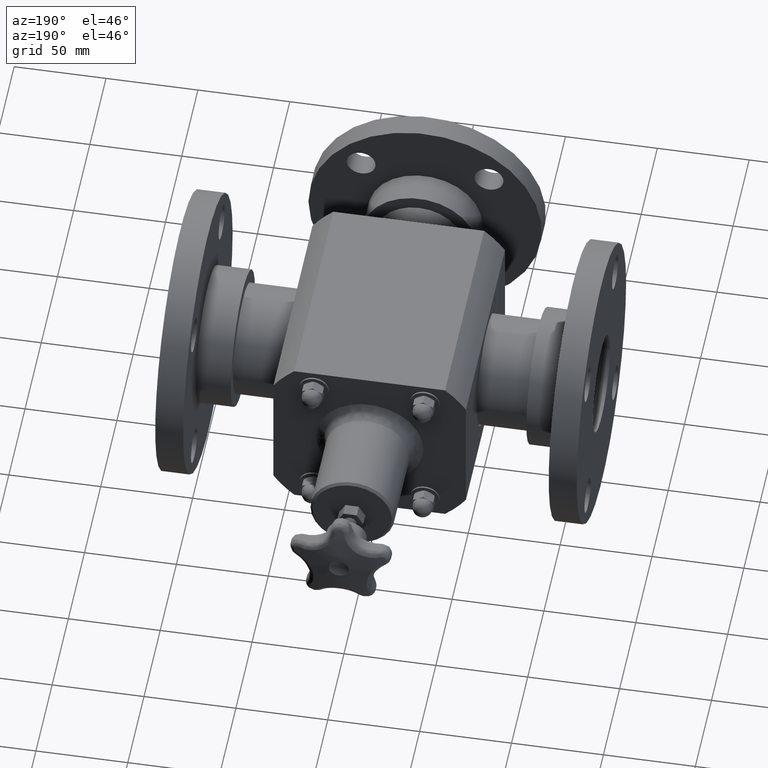
[diagram: clean part render]
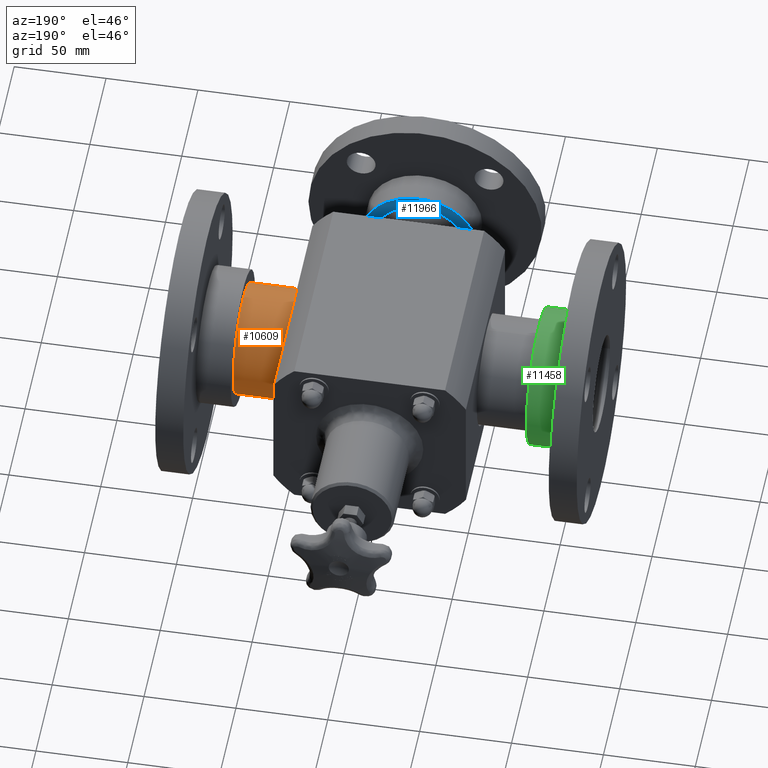
[diagram: same view with three faces highlighted in distinct colors, each labeled with its STEP entity id]
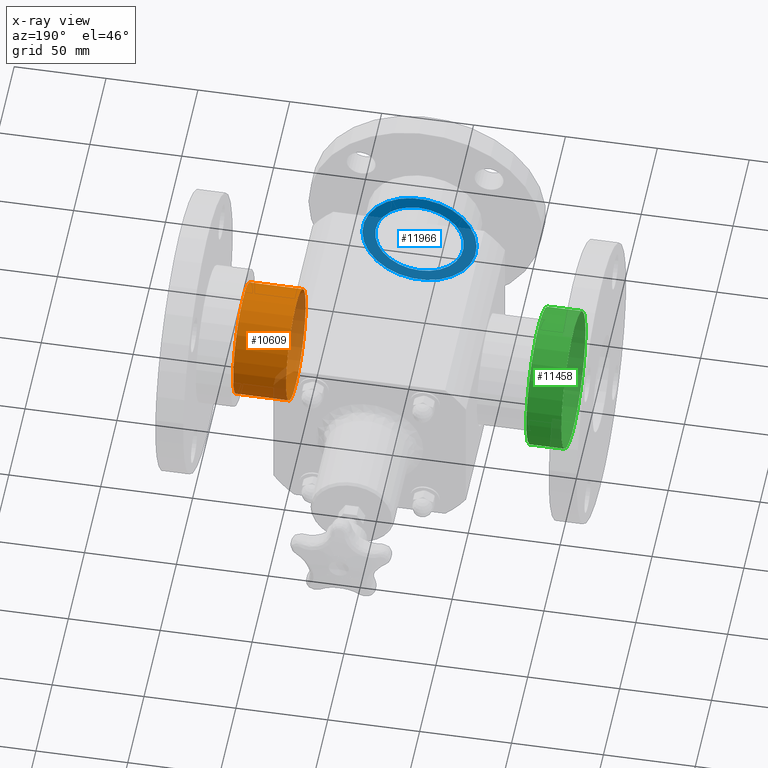
[diagram: x-ray of the same camera — body ghosted, the three highlighted faces saturated]
A machine part, auxiliary view with three faces highlighted in distinct colors.
The next image is the same camera in x-ray (body ghosted, the three faces saturated) — at least one of them is partly hidden behind the body in this view.
Their STEP definitions:

[orange] entity #10609 — the highlighted cylindrical surface (bore or boss wall) has radius 30.1625 mm, axis along (-1, -0, -0).
#10582=CARTESIAN_POINT('',(2.774999999999997,2.198000000000001,-7.544892E-017));
#10583=DIRECTION('',(-1.0,-8.326673E-016,-3.457792E-017));
#10584=DIRECTION('',(0.0,0.0,1.0));
#10585=AXIS2_PLACEMENT_3D('',#10582,#10583,#10584);
#10586=CYLINDRICAL_SURFACE('',#10585,1.187500000000000);
#10587=CARTESIAN_POINT('',(3.164999999999995,2.198000000000073,-1.187500000000000));
#10588=VERTEX_POINT('',#10587);
#10589=CARTESIAN_POINT('',(3.164999999999995,2.198000000000001,-6.196353E-017));
#10590=DIRECTION('',(1.0,0.0,0.0));
#10591=DIRECTION('',(0.0,0.0,1.0));
#10592=AXIS2_PLACEMENT_3D('',#10589,#10590,#10591);
#10593=CIRCLE('',#10592,1.187500000000000);
#10594=EDGE_CURVE('',#10588,#10588,#10593,.T.);
#10595=ORIENTED_EDGE('',*,*,#10594,.F.);
#10596=EDGE_LOOP('',(#10595));
#10597=FACE_OUTER_BOUND('',#10596,.T.);
#10598=CARTESIAN_POINT('',(2.030563773818456,2.198000000000072,-1.187500000000000));
#10599=VERTEX_POINT('',#10598);
#10600=CARTESIAN_POINT('',(2.030563773818456,2.198000000000000,-1.011900E-016));
#10601=DIRECTION('',(-1.0,0.0,0.0));
#10602=DIRECTION('',(0.0,0.0,1.0));
#10603=AXIS2_PLACEMENT_3D('',#10600,#10601,#10602);
#10604=CIRCLE('',#10603,1.187500000000000);
#10605=EDGE_CURVE('',#10599,#10599,#10604,.T.);
#10606=ORIENTED_EDGE('',*,*,#10605,.F.);
#10607=EDGE_LOOP('',(#10606));
#10608=FACE_BOUND('',#10607,.T.);
#10609=ADVANCED_FACE('',(#10597,#10608),#10586,.T.);

[blue] entity #11966 — the highlighted planar face has unit normal (0, 1, 0).
#10519=CARTESIAN_POINT('',(-6.045587E-014,-1.307000000000000,0.949999999999998));
#10520=VERTEX_POINT('',#10519);
#10521=CARTESIAN_POINT('',(-2.854140E-015,-1.307000000000000,-2.175416E-015));
#10522=DIRECTION('',(0.0,-1.0,0.0));
#10523=DIRECTION('',(0.0,0.0,-1.0));
#10524=AXIS2_PLACEMENT_3D('',#10521,#10522,#10523);
#10525=CIRCLE('',#10524,0.950000000000000);
#10526=EDGE_CURVE('',#10520,#10520,#10525,.T.);
#11940=CARTESIAN_POINT('',(1.224999999999997,-1.307000000000000,-1.224601E-015));
#11941=VERTEX_POINT('',#11940);
#11942=CARTESIAN_POINT('',(-3.678345E-015,-1.307000000000001,-2.275148E-015));
#11943=DIRECTION('',(0.0,1.0,0.0));
#11944=DIRECTION('',(1.0,0.0,0.0));
#11945=AXIS2_PLACEMENT_3D('',#11942,#11943,#11944);
#11946=CIRCLE('',#11945,1.225000000000000);
#11947=EDGE_CURVE('',#11941,#11941,#11946,.T.);
#11955=CARTESIAN_POINT('',(1.077499999999997,-1.307000000000000,-1.351096E-015));
#11956=DIRECTION('',(0.0,1.0,0.0));
#11957=DIRECTION('',(0.0,0.0,-1.0));
#11958=AXIS2_PLACEMENT_3D('',#11955,#11956,#11957);
#11959=PLANE('',#11958);
#11960=ORIENTED_EDGE('',*,*,#11947,.T.);
#11961=EDGE_LOOP('',(#11960));
#11962=FACE_OUTER_BOUND('',#11961,.T.);
#11963=ORIENTED_EDGE('',*,*,#10526,.T.);
#11964=EDGE_LOOP('',(#11963));
#11965=FACE_BOUND('',#11964,.T.);
#11966=ADVANCED_FACE('',(#11962,#11965),#11959,.T.);

[green] entity #11458 — the highlighted cylindrical surface (bore or boss wall) has radius 37.211 mm, axis along (1, 0, -0).
#11427=CARTESIAN_POINT('',(-3.915000000000004,0.732999999999998,-7.110834E-016));
#11428=VERTEX_POINT('',#11427);
#11429=CARTESIAN_POINT('',(-3.915000000000004,2.197999999999998,-1.429537E-015));
#11430=DIRECTION('',(1.0,0.0,0.0));
#11431=DIRECTION('',(0.0,-1.0,0.0));
#11432=AXIS2_PLACEMENT_3D('',#11429,#11430,#11431);
#11433=CIRCLE('',#11432,1.465000000000000);
#11434=EDGE_CURVE('',#11428,#11428,#11433,.T.);
#11439=CARTESIAN_POINT('',(-3.540000000000004,2.197999999999998,-1.499894E-015));
#11440=DIRECTION('',(1.0,5.551115E-017,-1.876194E-016));
#11441=DIRECTION('',(0.0,-1.0,0.0));
#11442=AXIS2_PLACEMENT_3D('',#11439,#11440,#11441);
#11443=CYLINDRICAL_SURFACE('',#11442,1.465000000000000);
#11444=CARTESIAN_POINT('',(-3.165000000000004,0.732999999999998,-8.517980E-016));
#11445=VERTEX_POINT('',#11444);
#11446=CARTESIAN_POINT('',(-3.165000000000004,2.197999999999998,-1.570252E-015));
#11447=DIRECTION('',(1.0,0.0,0.0));
#11448=DIRECTION('',(0.0,-1.0,0.0));
#11449=AXIS2_PLACEMENT_3D('',#11446,#11447,#11448);
#11450=CIRCLE('',#11449,1.465000000000000);
#11451=EDGE_CURVE('',#11445,#11445,#11450,.T.);
#11452=ORIENTED_EDGE('',*,*,#11451,.F.);
#11453=EDGE_LOOP('',(#11452));
#11454=FACE_OUTER_BOUND('',#11453,.T.);
#11455=ORIENTED_EDGE('',*,*,#11434,.T.);
#11456=EDGE_LOOP('',(#11455));
#11457=FACE_BOUND('',#11456,.T.);
#11458=ADVANCED_FACE('',(#11454,#11457),#11443,.T.);